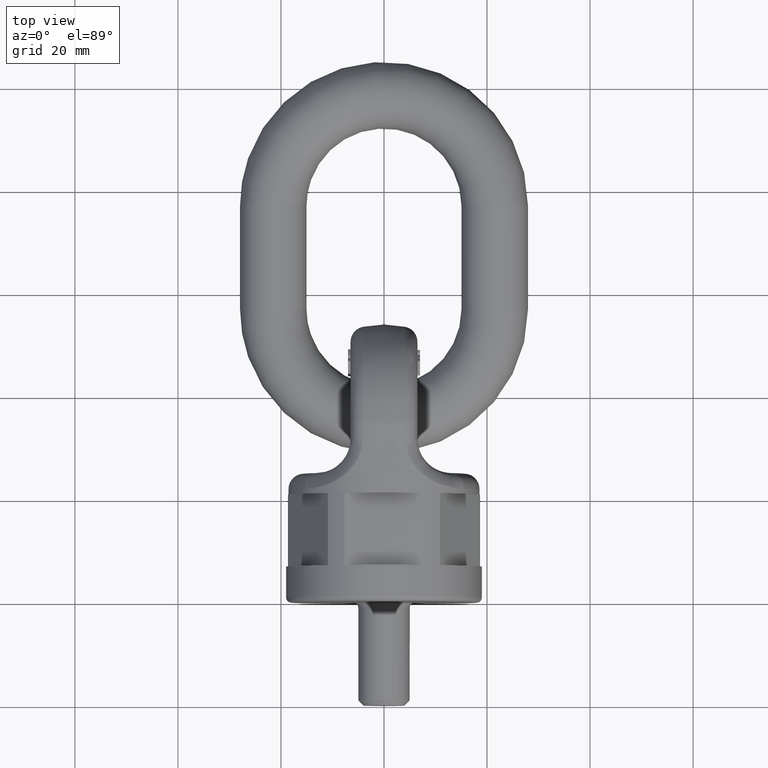
[diagram: clean part render]
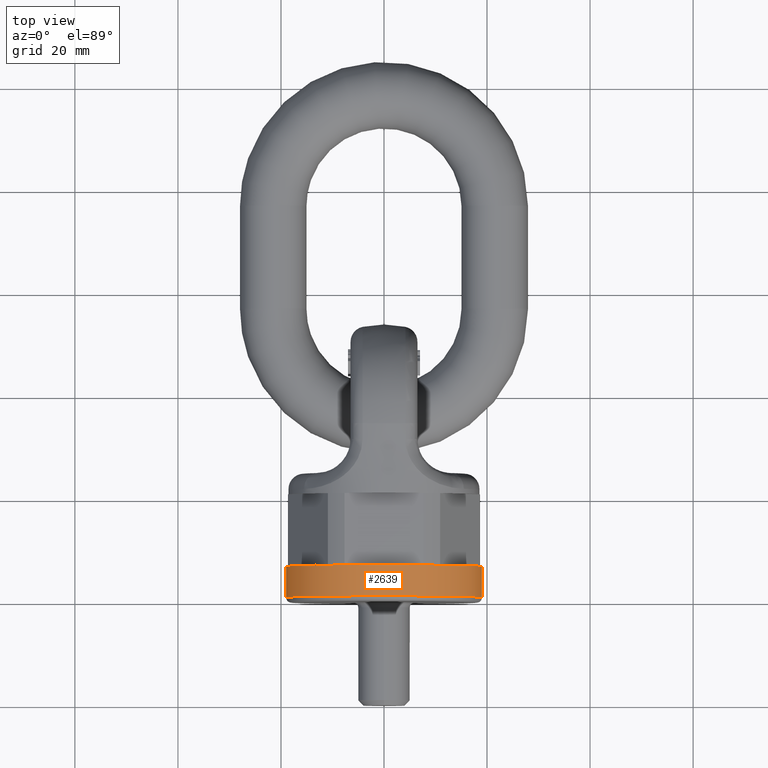
[diagram: same view with one face highlighted and labeled with its STEP entity id]
A machine part, top view. The second image highlights one B-rep face of the part: STEP entity #2639.
In plain terms, the highlighted cylindrical surface (bore or boss wall) has radius 19 mm, axis along (0, -1, 0).
Its self-contained STEP definition (entity closure, byte-faithful):
#2012=CYLINDRICAL_SURFACE('',#5608,19.);
#2639=ADVANCED_FACE('',(#2989,#2990),#2012,.T.);
#2989=FACE_BOUND('',#3061,.T.);
#2990=FACE_BOUND('',#3062,.T.);
#3061=EDGE_LOOP('',(#3358));
#3062=EDGE_LOOP('',(#3359));
#3358=ORIENTED_EDGE('',*,*,#4948,.T.);
#3359=ORIENTED_EDGE('',*,*,#4935,.T.);
#4537=VERTEX_POINT('',#6568);
#4550=VERTEX_POINT('',#6595);
#4935=EDGE_CURVE('',#4537,#4537,#5531,.T.);
#4948=EDGE_CURVE('',#4550,#4550,#5538,.T.);
#5531=CIRCLE('',#5599,19.);
#5538=CIRCLE('',#5607,19.);
#5599=AXIS2_PLACEMENT_3D('',#6567,#5809,#5810);
#5607=AXIS2_PLACEMENT_3D('',#6594,#5831,#5832);
#5608=AXIS2_PLACEMENT_3D('',#6596,#5833,#5834);
#5809=DIRECTION('',(3.82702124733548E-17,-1.,0.));
#5810=DIRECTION('',(1.,4.56506177888633E-17,0.));
#5831=DIRECTION('',(-3.82702124733548E-17,1.,0.));
#5832=DIRECTION('',(1.,3.42379633416475E-17,0.));
#5833=DIRECTION('',(3.82702124733548E-17,-1.,0.));
#5834=DIRECTION('',(1.,4.56506177888633E-17,0.));
#6567=CARTESIAN_POINT('',(-2.67891487313483E-16,7.,0.));
#6568=CARTESIAN_POINT('',(19.,7.,0.));
#6594=CARTESIAN_POINT('',(-3.82702124733548E-17,0.999999999999999,0.));
#6595=CARTESIAN_POINT('',(19.,1.,0.));
#6596=CARTESIAN_POINT('',(-2.67891487313483E-16,7.,0.));